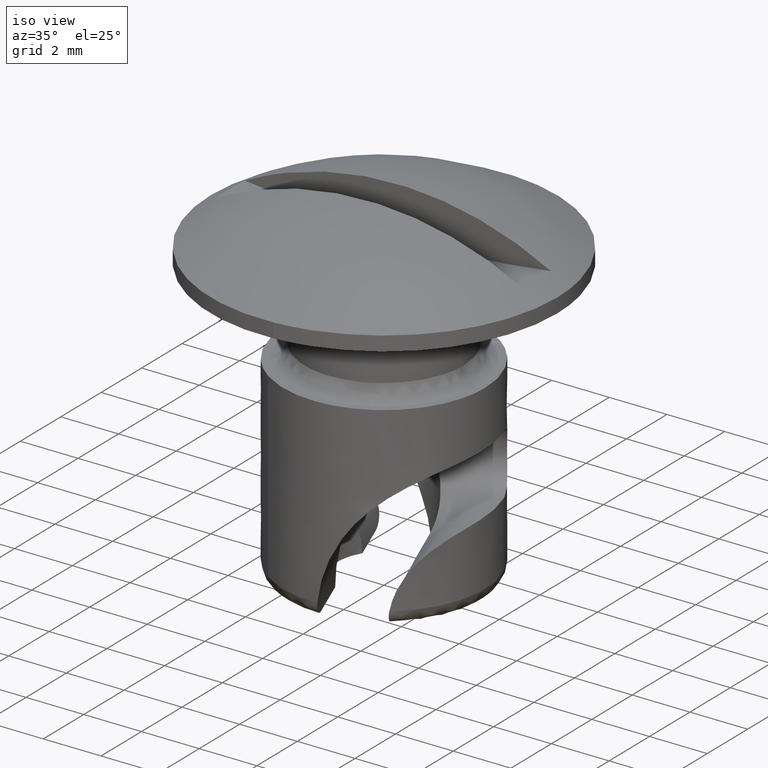
[diagram: clean part render]
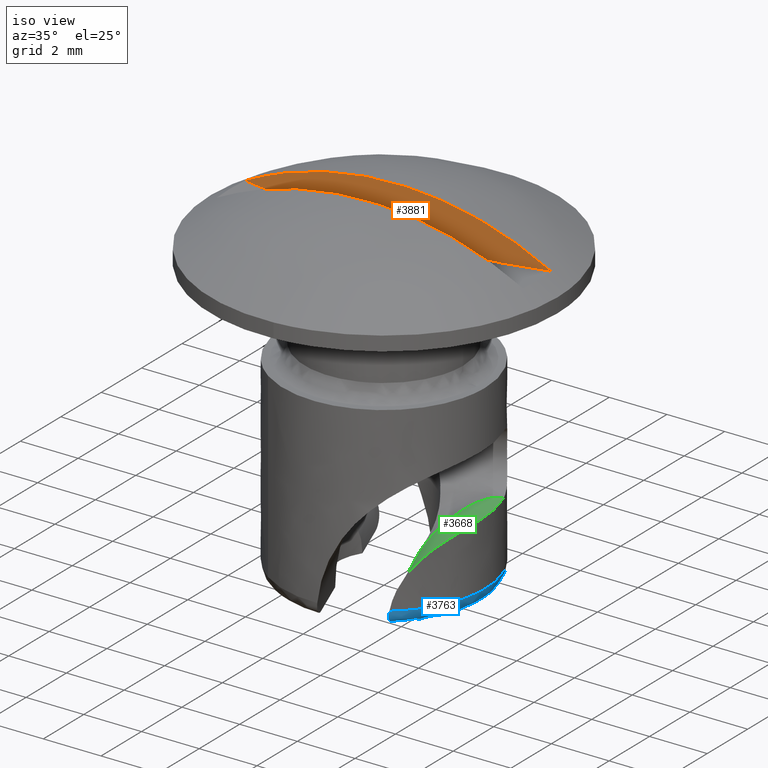
[diagram: same view with three faces highlighted in distinct colors, each labeled with its STEP entity id]
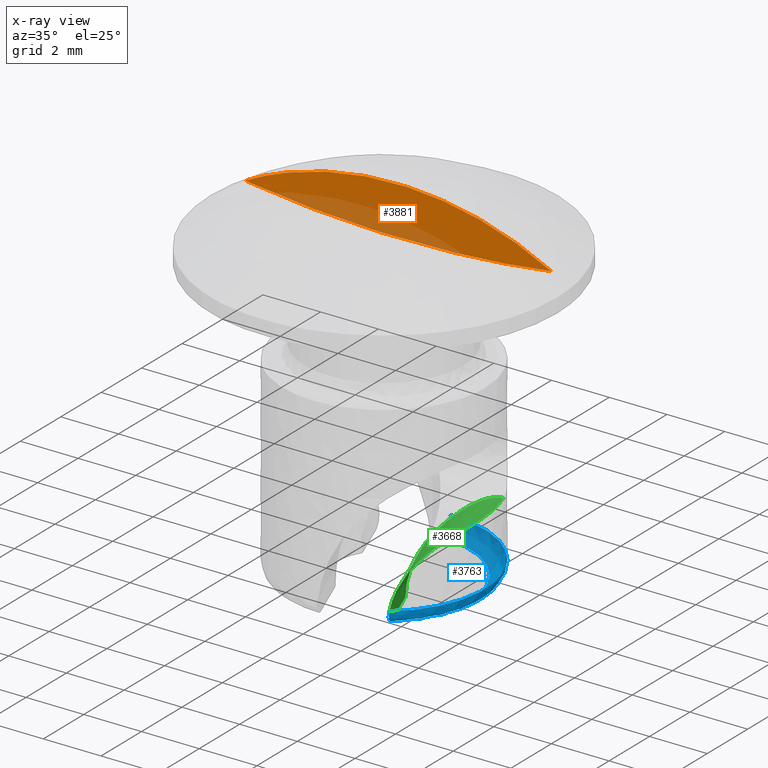
[diagram: x-ray of the same camera — body ghosted, the three highlighted faces saturated]
A machine part, iso view with three faces highlighted in distinct colors.
The next image is the same camera in x-ray (body ghosted, the three faces saturated) — at least one of them is partly hidden behind the body in this view.
Their STEP definitions:

[orange] entity #3881 — the highlighted face is a freeform B-spline surface patch.
#3844=CARTESIAN_POINT('',(-5.833388525220246,0.699996999999910,2.262396328070630));
#3845=CARTESIAN_POINT('',(5.833388240714965,0.699996999999910,2.262396328070630));
#3846=CARTESIAN_POINT('',(-5.833388525220246,0.699996999999910,0.416156254483624));
#3847=CARTESIAN_POINT('',(5.833388240714965,0.699996999999910,0.416156254483624));
#3848=B_SPLINE_SURFACE_WITH_KNOTS('',1,1,((#3844,#3846),(#3845,#3847)),.UNSPECIFIED.,.F.,.F.,.U.,(2,2),(2,2),(0.0,11.666776765935211),(0.0,1.846240073587005),.UNSPECIFIED.);
#3849=CARTESIAN_POINT('',(5.303562853731459,0.699996999999907,0.871922437406934));
#3850=VERTEX_POINT('',#3849);
#3851=CARTESIAN_POINT('',(-5.303562853731459,0.699996999999907,0.871922437406934));
#3852=VERTEX_POINT('',#3851);
#3853=CARTESIAN_POINT('',(5.303562853731459,0.699996999999907,0.871922437406934));
#3854=CARTESIAN_POINT('',(4.336809E-015,0.699996999999910,3.654050891943375));
#3855=CARTESIAN_POINT('',(-5.303562853731469,0.699996999999910,0.871922437406952));
#3863=(BOUNDED_CURVE()B_SPLINE_CURVE(2,(#3853,#3854,#3855),.UNSPECIFIED.,.F.,.U.)CURVE()GEOMETRIC_REPRESENTATION_ITEM()QUASI_UNIFORM_CURVE()RATIONAL_B_SPLINE_CURVE((1.0,0.885551927244557,1.0))REPRESENTATION_ITEM(''));
#3864=EDGE_CURVE('',#3850,#3852,#3863,.T.);
#3865=ORIENTED_EDGE('',*,*,#3864,.T.);
#3866=CARTESIAN_POINT('',(-5.303562853731460,0.699996999999897,0.871922437406934));
#3867=CARTESIAN_POINT('',(-7.806256E-015,0.699996999999897,0.124401416789009));
#3868=CARTESIAN_POINT('',(5.303562853731459,0.699996999999907,0.871922437406934));
#3876=(BOUNDED_CURVE()B_SPLINE_CURVE(2,(#3866,#3867,#3868),.UNSPECIFIED.,.F.,.U.)CURVE()GEOMETRIC_REPRESENTATION_ITEM()QUASI_UNIFORM_CURVE()RATIONAL_B_SPLINE_CURVE((1.0,0.990212567436660,1.0))REPRESENTATION_ITEM(''));
#3877=EDGE_CURVE('',#3852,#3850,#3876,.T.);
#3878=ORIENTED_EDGE('',*,*,#3877,.T.);
#3879=EDGE_LOOP('',(#3865,#3878));
#3880=FACE_OUTER_BOUND('',#3879,.T.);
#3881=ADVANCED_FACE('',(#3880),#3848,.F.);

[blue] entity #3763 — the highlighted face is a freeform B-spline surface patch.
#179=CARTESIAN_POINT('',(2.130075441178700,-2.777188977165105,-9.299999999999999));
#180=VERTEX_POINT('',#179);
#222=CARTESIAN_POINT('',(2.008126187107555,2.866605870476943,-9.300000000000001));
#223=VERTEX_POINT('',#222);
#224=CARTESIAN_POINT('',(2.130075441178701,-2.777188977165105,-9.299999999999999));
#225=CARTESIAN_POINT('',(4.162072481353428,-1.218668103212105,-9.299999999999999));
#226=CARTESIAN_POINT('',(3.291595106735737,1.189706540838268,-9.299999999999999));
#227=CARTESIAN_POINT('',(2.915156806922757,2.231209149354876,-9.299999999999997));
#228=CARTESIAN_POINT('',(2.008126187107555,2.866605870476942,-9.300000000000001));
#236=(BOUNDED_CURVE()B_SPLINE_CURVE(2,(#224,#225,#226,#227,#228),.UNSPECIFIED.,.F.,.U.)B_SPLINE_CURVE_WITH_KNOTS((3,2,3),(0.0,0.500000000000000,0.742816691669973),.UNSPECIFIED.)CURVE()GEOMETRIC_REPRESENTATION_ITEM()RATIONAL_B_SPLINE_CURVE((1.0,0.807043129310147,1.0,0.906293702048198,0.903601217125586))REPRESENTATION_ITEM(''));
#237=EDGE_CURVE('',#180,#223,#236,.T.);
#311=CARTESIAN_POINT('',(-0.137757022448141,3.497287949649875,-9.299999999999999));
#312=VERTEX_POINT('',#311);
#313=CARTESIAN_POINT('',(2.008126187107555,2.866605870476942,-9.300000000000001));
#314=CARTESIAN_POINT('',(1.041516516738349,3.543739146619937,-9.299999999999999));
#315=CARTESIAN_POINT('',(-0.137757022448141,3.497287949649874,-9.299999999999999));
#323=(BOUNDED_CURVE()B_SPLINE_CURVE(2,(#313,#314,#315),.UNSPECIFIED.,.F.,.U.)B_SPLINE_CURVE_WITH_KNOTS((3,3),(0.742816691669973,1.0),.UNSPECIFIED.)CURVE()GEOMETRIC_REPRESENTATION_ITEM()RATIONAL_B_SPLINE_CURVE((0.903601217125586,0.900749427261949,1.0))REPRESENTATION_ITEM(''));
#324=EDGE_CURVE('',#223,#312,#323,.T.);
#3483=CARTESIAN_POINT('',(0.080239420365373,2.998926747257960,-9.799999999999999));
#3484=VERTEX_POINT('',#3483);
#3485=CARTESIAN_POINT('',(-0.137757022448141,3.497287949649875,-9.299999999999999));
#3486=CARTESIAN_POINT('',(-0.134132436457687,3.497430720900300,-9.333926120683451));
#3487=CARTESIAN_POINT('',(-0.129640260713038,3.494181782439849,-9.367378948564527));
#3488=CARTESIAN_POINT('',(-0.118905553909452,3.481038192921639,-9.433350344673281));
#3489=CARTESIAN_POINT('',(-0.112624845358912,3.471025975895301,-9.465909220416926));
#3490=CARTESIAN_POINT('',(-0.098744670387415,3.445249411175664,-9.527170293401925));
#3491=CARTESIAN_POINT('',(-0.091089024284029,3.429432838909117,-9.556267335355768));
#3492=CARTESIAN_POINT('',(-0.074147083489533,3.391881020304141,-9.611317578329592));
#3493=CARTESIAN_POINT('',(-0.065125447872394,3.370735824254828,-9.636399413267819));
#3494=CARTESIAN_POINT('',(-0.045895685391280,3.324122915022451,-9.681856314688393));
#3495=CARTESIAN_POINT('',(-0.035567049289708,3.298345127530344,-9.702415737830911));
#3496=CARTESIAN_POINT('',(-0.014137898155494,3.243995652549709,-9.737620952804281));
#3497=CARTESIAN_POINT('',(-0.003060017889228,3.215495944995386,-9.752321592371372));
#3498=CARTESIAN_POINT('',(0.019936099126279,3.155987085026253,-9.776109208942987));
#3499=CARTESIAN_POINT('',(0.031912715942304,3.124823539626253,-9.785163879862525));
#3500=CARTESIAN_POINT('',(0.055891102723282,3.062374614793466,-9.797039366818627));
#3501=CARTESIAN_POINT('',(0.067998811922299,3.030814627400063,-9.799999999889369));
#3502=CARTESIAN_POINT('',(0.080239420365373,2.998926747257960,-9.799999999999999));
#3503=B_SPLINE_CURVE_WITH_KNOTS('',3,(#3485,#3486,#3487,#3488,#3489,#3490,#3491,#3492,#3493,#3494,#3495,#3496,#3497,#3498,#3499,#3500,#3501,#3502),.UNSPECIFIED.,.F.,.U.,(4,2,2,2,2,2,2,2,4),(0.0,0.125000000000000,0.250000000000000,0.375000000000000,0.500000000000000,0.625000000000000,0.750000000000000,0.875000000000000,1.0),.UNSPECIFIED.);
#3504=EDGE_CURVE('',#312,#3484,#3503,.T.);
#3638=CARTESIAN_POINT('',(1.906978861115200,-2.315908379720530,-9.799999999999999));
#3639=VERTEX_POINT('',#3638);
#3645=CARTESIAN_POINT('',(2.130075441178703,-2.777188977165104,-9.300000000000004));
#3646=CARTESIAN_POINT('',(2.125207190414889,-2.780922875534557,-9.333183272121120));
#3647=CARTESIAN_POINT('',(2.119668458612029,-2.781029743049898,-9.366049092864868));
#3648=CARTESIAN_POINT('',(2.107187352705782,-2.774075521922642,-9.431139141467490));
#3649=CARTESIAN_POINT('',(2.100154557965392,-2.766843942316030,-9.463678030301731));
#3650=CARTESIAN_POINT('',(2.085091666893553,-2.745728706374117,-9.525114703559190));
#3651=CARTESIAN_POINT('',(2.077018872512545,-2.731884596106581,-9.554322145193783));
#3652=CARTESIAN_POINT('',(2.059506595577937,-2.697701537372386,-9.609672805767263));
#3653=CARTESIAN_POINT('',(2.050310647059680,-2.677834332726543,-9.635014324561455));
#3654=CARTESIAN_POINT('',(2.030972175045378,-2.633439045435500,-9.680843940488918));
#3655=CARTESIAN_POINT('',(2.020691198678081,-2.608566691567891,-9.701570195246278));
#3656=CARTESIAN_POINT('',(1.999570599173187,-2.555998058538903,-9.736954771809605));
#3657=CARTESIAN_POINT('',(1.988690008278448,-2.528225781555033,-9.751784267086974));
#3658=CARTESIAN_POINT('',(1.966061360946408,-2.469875134090497,-9.775859528742853));
#3659=CARTESIAN_POINT('',(1.954408848319010,-2.439540972403132,-9.784939635178855));
#3660=CARTESIAN_POINT('',(1.930960765938615,-2.378430752100600,-9.796956075712494));
#3661=CARTESIAN_POINT('',(1.919038186803075,-2.347323989491613,-9.799999999999999));
#3662=CARTESIAN_POINT('',(1.906978861115176,-2.315908379720550,-9.799999999999999));
#3663=B_SPLINE_CURVE_WITH_KNOTS('',3,(#3645,#3646,#3647,#3648,#3649,#3650,#3651,#3652,#3653,#3654,#3655,#3656,#3657,#3658,#3659,#3660,#3661,#3662),.UNSPECIFIED.,.F.,.U.,(4,2,2,2,2,2,2,2,4),(0.0,0.125000000000000,0.250000000000000,0.375000000000000,0.500000000000000,0.625000000000000,0.750000000000000,0.875000000000000,1.0),.UNSPECIFIED.);
#3664=EDGE_CURVE('',#180,#3639,#3663,.T.);
#3719=CARTESIAN_POINT('',(1.498129080787281,-2.558837926367392,-9.798783147493648));
#3720=CARTESIAN_POINT('',(3.624487164459457,-1.313913873737485,-9.798783147493648));
#3721=CARTESIAN_POINT('',(2.789841149681218,1.004404617503373,-9.798783147493650));
#3722=CARTESIAN_POINT('',(1.957178014833242,3.317215447859436,-9.798783147493650));
#3723=CARTESIAN_POINT('',(-0.469893260555351,2.927668457971525,-9.798783147493650));
#3724=CARTESIAN_POINT('',(1.787903700042125,-3.053779447333201,-9.838869708061868));
#3725=CARTESIAN_POINT('',(4.325551179266096,-1.568056789310457,-9.838869708061868));
#3726=CARTESIAN_POINT('',(3.329464315200131,1.198680911413840,-9.838869708061869));
#3727=CARTESIAN_POINT('',(2.335743868293760,3.958845635616429,-9.838869708061866));
#3728=CARTESIAN_POINT('',(-0.560782051390577,3.493950778762798,-9.838869708061868));
#3729=CARTESIAN_POINT('',(1.767758748775863,-3.019371420691168,-9.265324905871569));
#3730=CARTESIAN_POINT('',(4.276813645077881,-1.550388931918224,-9.265324905871566));
#3731=CARTESIAN_POINT('',(3.291950048424529,1.185174944317480,-9.265324905871566));
#3732=CARTESIAN_POINT('',(2.309426205661180,3.914239904111836,-9.265324905871568));
#3733=CARTESIAN_POINT('',(-0.554463519192232,3.454583184096912,-9.265324905871568));
#3741=(BOUNDED_SURFACE()B_SPLINE_SURFACE(2,2,((#3719,#3724,#3729),(#3720,#3725,#3730),(#3721,#3726,#3731),(#3722,#3727,#3732),(#3723,#3728,#3733)),.UNSPECIFIED.,.F.,.F.,.U.)B_SPLINE_SURFACE_WITH_KNOTS((3,2,3),(3,3),(0.0,5.055766372501000,10.102402140195510),(0.0,0.911185038638671),.UNSPECIFIED.)GEOMETRIC_REPRESENTATION_ITEM()RATIONAL_B_SPLINE_SURFACE(((0.891707163205735,0.586787729512996,0.896673745563242),(0.694267683793992,0.456862717557569,0.698134578411416),(0.913811135304677,0.601333244157656,0.918900831171178),(0.694664174522776,0.457123628206397,0.698533277492829),(0.890995380353980,0.586319340942486,0.895957998261834)))REPRESENTATION_ITEM('')SURFACE());
#3742=ORIENTED_EDGE('',*,*,#3504,.F.);
#3743=ORIENTED_EDGE('',*,*,#324,.F.);
#3744=ORIENTED_EDGE('',*,*,#237,.F.);
#3745=ORIENTED_EDGE('',*,*,#3664,.T.);
#3746=CARTESIAN_POINT('',(0.080239420365372,2.998926747257997,-9.799999999999999));
#3747=CARTESIAN_POINT('',(2.160638553340537,2.943263493491902,-9.799999999999997));
#3748=CARTESIAN_POINT('',(2.837098382380115,0.975127052591680,-9.799999999999999));
#3749=CARTESIAN_POINT('',(3.513558211419692,-0.993009388308544,-9.799999999999997));
#3750=CARTESIAN_POINT('',(1.906978861115200,-2.315908379720531,-9.799999999999999));
#3758=(BOUNDED_CURVE()B_SPLINE_CURVE(2,(#3746,#3747,#3748,#3749,#3750),.UNSPECIFIED.,.F.,.U.)B_SPLINE_CURVE_WITH_KNOTS((3,2,3),(0.0,0.500000000000000,1.0),.UNSPECIFIED.)CURVE()GEOMETRIC_REPRESENTATION_ITEM()RATIONAL_B_SPLINE_CURVE((1.0,0.821650835875683,1.0,0.821650835875683,1.0))REPRESENTATION_ITEM(''));
#3759=EDGE_CURVE('',#3484,#3639,#3758,.T.);
#3760=ORIENTED_EDGE('',*,*,#3759,.F.);
#3761=EDGE_LOOP('',(#3742,#3743,#3744,#3745,#3760));
#3762=FACE_OUTER_BOUND('',#3761,.T.);
#3763=ADVANCED_FACE('',(#3762),#3741,.T.);

[green] entity #3668 — the highlighted face is a freeform B-spline surface patch.
#158=CARTESIAN_POINT('',(3.267531389806065,1.254288091569578,-7.0));
#159=VERTEX_POINT('',#158);
#179=CARTESIAN_POINT('',(2.130075441178700,-2.777188977165105,-9.299999999999999));
#180=VERTEX_POINT('',#179);
#181=CARTESIAN_POINT('',(3.267531389806065,1.254288091569578,-7.0));
#182=CARTESIAN_POINT('',(3.351236201231298,1.036229656143438,-7.000000000000044));
#183=CARTESIAN_POINT('',(3.411928696002228,0.813524103630151,-7.001800996670408));
#184=CARTESIAN_POINT('',(3.469827848615739,0.472825998035594,-7.009600199138060));
#185=CARTESIAN_POINT('',(3.483562531513643,0.358145937308118,-7.013102425939854));
#186=CARTESIAN_POINT('',(3.495619258811995,0.184431839080720,-7.020534950377436));
#187=CARTESIAN_POINT('',(3.498212180357704,0.126067960738645,-7.023390375839234));
#188=CARTESIAN_POINT('',(3.500469369138219,0.009786994067357,-7.029966316466434));
#189=CARTESIAN_POINT('',(3.500144511385644,-0.048109455840928,-7.033682853950105));
#190=CARTESIAN_POINT('',(3.491431374993663,-0.336340421150401,-7.054835481180629));
#191=CARTESIAN_POINT('',(3.461918738339058,-0.562977309875914,-7.079685337474288));
#192=CARTESIAN_POINT('',(3.398109027051480,-0.840294049969936,-7.130150688370769));
#193=CARTESIAN_POINT('',(3.383992784310708,-0.895454771716475,-7.141234085952900));
#194=CARTESIAN_POINT('',(3.353052753250736,-1.005128671551261,-7.165714803996293));
#195=CARTESIAN_POINT('',(3.336194478454463,-1.059709490379516,-7.179141610569221));
#196=CARTESIAN_POINT('',(3.282408131559174,-1.220044288604333,-7.222764943899247));
#197=CARTESIAN_POINT('',(3.242068892079109,-1.323176334171408,-7.256451718762171));
#198=CARTESIAN_POINT('',(3.153749195252495,-1.521733329378895,-7.334986374075226));
#199=CARTESIAN_POINT('',(3.105763618038679,-1.617158614404538,-7.379827729397077));
#200=CARTESIAN_POINT('',(3.029071382458817,-1.754271634835354,-7.457209940913495));
#201=CARTESIAN_POINT('',(3.002696795596468,-1.798990073473767,-7.484733671681067));
#202=CARTESIAN_POINT('',(2.949511085799146,-1.884923787714078,-7.542440264602115));
#203=CARTESIAN_POINT('',(2.922593267599006,-1.926337623400648,-7.572727371432208));
#204=CARTESIAN_POINT('',(2.841274894414518,-2.046086303884898,-7.668031174000636));
#205=CARTESIAN_POINT('',(2.786308989744124,-2.119934950668806,-7.737482804827605));
#206=CARTESIAN_POINT('',(2.704329386886680,-2.222276549525314,-7.851197747841928));
#207=CARTESIAN_POINT('',(2.677080857038339,-2.254983552241480,-7.890693929119331));
#208=CARTESIAN_POINT('',(2.623012407187728,-2.317653694523834,-7.973006711592077));
#209=CARTESIAN_POINT('',(2.596184807477814,-2.347614942412520,-8.015860002349903));
#210=CARTESIAN_POINT('',(2.518069499382975,-2.432120861706055,-8.147317138427383));
#211=CARTESIAN_POINT('',(2.468685109934238,-2.481862689659974,-8.239491498513957));
#212=CARTESIAN_POINT('',(2.376845319873084,-2.569952316237536,-8.432795620225614));
#213=CARTESIAN_POINT('',(2.334357523734929,-2.608320339728395,-8.533992450119699));
#214=CARTESIAN_POINT('',(2.257984747262054,-2.674708381186748,-8.745278260521699));
#215=CARTESIAN_POINT('',(2.224880716377864,-2.702069470426243,-8.853192757073909));
#216=CARTESIAN_POINT('',(2.169320343134340,-2.746875110736407,-9.073347943216476));
#217=CARTESIAN_POINT('',(2.146860492500005,-2.764315015078833,-9.185588694464377));
#218=CARTESIAN_POINT('',(2.130075441178700,-2.777188977165105,-9.299999999999999));
#219=B_SPLINE_CURVE_WITH_KNOTS('',3,(#181,#182,#183,#184,#185,#186,#187,#188,#189,#190,#191,#192,#193,#194,#195,#196,#197,#198,#199,#200,#201,#202,#203,#204,#205,#206,#207,#208,#209,#210,#211,#212,#213,#214,#215,#216,#217,#218),.UNSPECIFIED.,.F.,.U.,(4,2,2,2,2,2,2,2,2,2,2,2,2,2,2,2,2,2,4),(0.0,0.125000000000000,0.187500000000000,0.218750000000000,0.250000000000000,0.374999999999999,0.406249999999999,0.437499999999999,0.499999999999999,0.562499999999999,0.593749999999999,0.624999999999999,0.687499999999998,0.718749999999999,0.749999999999999,0.812499999999999,0.874999999999999,0.937500000000000,1.0),.UNSPECIFIED.);
#220=EDGE_CURVE('',#159,#180,#219,.T.);
#1281=CARTESIAN_POINT('',(1.348526415986928,-0.861090300366407,-9.800006999999789));
#1282=VERTEX_POINT('',#1281);
#1298=CARTESIAN_POINT('',(1.526739714262565,-0.478608237385708,-8.520980805307620));
#1299=VERTEX_POINT('',#1298);
#1300=CARTESIAN_POINT('',(1.348526415986928,-0.861090300366407,-9.800006999999789));
#1301=CARTESIAN_POINT('',(1.348216878263476,-0.861575057628850,-9.684480202719346));
#1302=CARTESIAN_POINT('',(1.352707110030773,-0.854672807549093,-9.570560551882979));
#1303=CARTESIAN_POINT('',(1.370351731888041,-0.826086112874334,-9.345851547787540));
#1304=CARTESIAN_POINT('',(1.383519998961992,-0.804411827625889,-9.235061851465098));
#1305=CARTESIAN_POINT('',(1.408719474774443,-0.758822073012819,-9.071444511098264));
#1306=CARTESIAN_POINT('',(1.418069932805433,-0.741329285476151,-9.017089868608604));
#1307=CARTESIAN_POINT('',(1.438064287306668,-0.701756759566075,-8.910550163466356));
#1308=CARTESIAN_POINT('',(1.448657629700481,-0.679781926301323,-8.858581550459556));
#1309=CARTESIAN_POINT('',(1.481458788396997,-0.606736702840804,-8.706707380556868));
#1310=CARTESIAN_POINT('',(1.504778748275995,-0.548662777793634,-8.610790856729183));
#1311=CARTESIAN_POINT('',(1.526739714262565,-0.478608237385708,-8.520980805307620));
#1312=B_SPLINE_CURVE_WITH_KNOTS('',3,(#1300,#1301,#1302,#1303,#1304,#1305,#1306,#1307,#1308,#1309,#1310,#1311),.UNSPECIFIED.,.F.,.U.,(4,2,2,2,2,4),(0.0,0.249999999999999,0.499999999999999,0.624999999999998,0.749999999999998,1.0),.UNSPECIFIED.);
#1313=EDGE_CURVE('',#1282,#1299,#1312,.T.);
#3226=CARTESIAN_POINT('',(3.267531389806065,1.254288091569578,-7.0));
#3227=CARTESIAN_POINT('',(3.202265972063375,1.276711525035881,-7.003420044364808));
#3228=CARTESIAN_POINT('',(3.130704219687183,1.275181439910476,-7.012578777117788));
#3229=CARTESIAN_POINT('',(3.064065319361154,1.260788751047254,-7.023251242721845));
#3230=CARTESIAN_POINT('',(2.966368535187341,1.239688171495798,-7.038897742943500));
#3231=CARTESIAN_POINT('',(2.877305648344979,1.193055155503925,-7.060326967196116));
#3232=CARTESIAN_POINT('',(2.799123687807710,1.134830254125221,-7.085726201660476));
#3233=CARTESIAN_POINT('',(2.763402807496198,1.108227637370594,-7.097330963271346));
#3234=CARTESIAN_POINT('',(2.729221533113726,1.080314401305378,-7.109820027332903));
#3235=CARTESIAN_POINT('',(2.695384281652506,1.051917978661729,-7.123176895388684));
#3236=CARTESIAN_POINT('',(2.660784704728483,1.022881807956434,-7.136834682703048));
#3237=CARTESIAN_POINT('',(2.633773646453845,0.985782193526259,-7.150301039631580));
#3238=CARTESIAN_POINT('',(2.602401570774032,0.954464819407923,-7.165416476001891));
#3239=CARTESIAN_POINT('',(2.581500280656621,0.933599973586325,-7.175486964293822));
#3240=CARTESIAN_POINT('',(2.564002305293624,0.909196866615426,-7.185286012031100));
#3241=CARTESIAN_POINT('',(2.544158314267516,0.887669831020986,-7.195982921086537));
#3242=CARTESIAN_POINT('',(2.528744773152667,0.870949008693504,-7.204291594846308));
#3243=CARTESIAN_POINT('',(2.515715250331078,0.851919465636551,-7.212289286282187));
#3244=CARTESIAN_POINT('',(2.500872026123141,0.834889331589898,-7.220966651913525));
#3245=CARTESIAN_POINT('',(2.489734614152463,0.822111001482076,-7.227477595526755));
#3246=CARTESIAN_POINT('',(2.479938469615569,0.808066079163613,-7.233788377897459));
#3247=CARTESIAN_POINT('',(2.469121123025193,0.795124088021453,-7.240498485978906));
#3248=CARTESIAN_POINT('',(2.444422879227778,0.765574840451123,-7.255819053173271));
#3249=CARTESIAN_POINT('',(2.422641390461839,0.734073405614878,-7.271043404572878));
#3250=CARTESIAN_POINT('',(2.399399526339807,0.703575103657170,-7.287372650652721));
#3251=CARTESIAN_POINT('',(2.382633822558448,0.681574910653173,-7.299151882357635));
#3252=CARTESIAN_POINT('',(2.373247550084899,0.655058804049956,-7.308735421080853));
#3253=CARTESIAN_POINT('',(2.358837646674420,0.632584514484881,-7.320248429281167));
#3254=CARTESIAN_POINT('',(2.353041360417547,0.623544383400844,-7.324879459018550));
#3255=CARTESIAN_POINT('',(2.348232918740299,0.613714328956107,-7.329220737455975));
#3256=CARTESIAN_POINT('',(2.342274755648430,0.604846138964634,-7.334016303862240));
#3257=CARTESIAN_POINT('',(2.335244229249994,0.594381832620537,-7.339674986864845));
#3258=CARTESIAN_POINT('',(2.329306132675650,0.583021303753614,-7.345028665104186));
#3259=CARTESIAN_POINT('',(2.322377563837621,0.572555063477277,-7.350800364534953));
#3260=CARTESIAN_POINT('',(2.301592124275670,0.541156745904012,-7.368115240448357));
#3261=CARTESIAN_POINT('',(2.284055588674102,0.507326605190345,-7.384909985982517));
#3262=CARTESIAN_POINT('',(2.264125430642915,0.475954707552480,-7.403252516640204));
#3263=CARTESIAN_POINT('',(2.236954957032688,0.433185888783533,-7.428258602613009));
#3264=CARTESIAN_POINT('',(2.212111492128583,0.389097726608739,-7.453569196442551));
#3265=CARTESIAN_POINT('',(2.185965759423134,0.347008545045572,-7.480746516441158));
#3266=CARTESIAN_POINT('',(2.165921677649275,0.314741750056457,-7.501581443141563));
#3267=CARTESIAN_POINT('',(2.147039807189050,0.281950072038970,-7.522725712643589));
#3268=CARTESIAN_POINT('',(2.127354259872653,0.250351844842671,-7.544898840166185));
#3269=CARTESIAN_POINT('',(2.086138009775233,0.184193641881611,-7.591323415247827));
#3270=CARTESIAN_POINT('',(2.046286713853633,0.118978416338279,-7.640353617109756));
#3271=CARTESIAN_POINT('',(2.005892329156856,0.057245025435030,-7.693209994488186));
#3272=CARTESIAN_POINT('',(1.942347818633313,-0.039867930668955,-7.776358497770823));
#3273=CARTESIAN_POINT('',(1.880341629462146,-0.130734596704930,-7.868265493406327));
#3274=CARTESIAN_POINT('',(1.816825404997875,-0.208525231289190,-7.969953129463151));
#3275=CARTESIAN_POINT('',(1.731068891274252,-0.313554358548586,-8.107246824587222));
#3276=CARTESIAN_POINT('',(1.647462642982773,-0.398118671511560,-8.262047722037847));
#3277=CARTESIAN_POINT('',(1.567782209906352,-0.450732745962401,-8.430042512807958));
#3278=CARTESIAN_POINT('',(1.553541924254217,-0.460135800395904,-8.460066117302459));
#3279=CARTESIAN_POINT('',(1.540084396059760,-0.469954249309885,-8.490341764791452));
#3280=CARTESIAN_POINT('',(1.526739714262565,-0.478608237385708,-8.520980805307620));
#3281=B_SPLINE_CURVE_WITH_KNOTS('',3,(#3226,#3227,#3228,#3229,#3230,#3231,#3232,#3233,#3234,#3235,#3236,#3237,#3238,#3239,#3240,#3241,#3242,#3243,#3244,#3245,#3246,#3247,#3248,#3249,#3250,#3251,#3252,#3253,#3254,#3255,#3256,#3257,#3258,#3259,#3260,#3261,#3262,#3263,#3264,#3265,#3266,#3267,#3268,#3269,#3270,#3271,#3272,#3273,#3274,#3275,#3276,#3277,#3278,#3279,#3280),.UNSPECIFIED.,.F.,.U.,(4,3,3,3,3,3,3,3,3,3,3,3,3,3,3,3,3,3,4),(0.0,0.207284192414726,0.511175746895779,0.650022020009159,0.791996385530723,0.886585198629594,0.960055729723159,1.015183346272667,1.141051118201280,1.231846837886016,1.268368802482176,1.311464070647372,1.440748214717240,1.616999271993070,1.752118476513569,2.035021808433753,2.480057767943794,3.080923652072287,3.188308884534638),.UNSPECIFIED.);
#3282=EDGE_CURVE('',#159,#1299,#3281,.T.);
#3621=CARTESIAN_POINT('',(0.828414322992632,0.502012662465389,-9.917250435243075));
#3622=CARTESIAN_POINT('',(2.124428237461148,-2.874218185639653,-9.917250435243075));
#3623=CARTESIAN_POINT('',(0.705628274154824,0.454879502750994,-7.053640134081148));
#3624=CARTESIAN_POINT('',(2.001642188623341,-2.921351345354050,-7.053640134081148));
#3625=CARTESIAN_POINT('',(3.381186671688216,1.481930397130026,-6.989486979845774));
#3626=CARTESIAN_POINT('',(4.677200586156732,-1.894300450975017,-6.989486979845773));
#3634=(BOUNDED_SURFACE()B_SPLINE_SURFACE(1,2,((#3621,#3623,#3625),(#3622,#3624,#3626)),.UNSPECIFIED.,.F.,.F.,.U.)B_SPLINE_SURFACE_WITH_KNOTS((2,2),(3,3),(0.0,3.616432884237188),(0.0,4.716512445631454),.UNSPECIFIED.)GEOMETRIC_REPRESENTATION_ITEM()RATIONAL_B_SPLINE_SURFACE(((1.0,0.697070244438356,0.995214354517523),(1.0,0.697070244438356,0.995214354517523)))REPRESENTATION_ITEM('')SURFACE());
#3635=ORIENTED_EDGE('',*,*,#220,.F.);
#3636=ORIENTED_EDGE('',*,*,#3282,.T.);
#3637=ORIENTED_EDGE('',*,*,#1313,.F.);
#3638=CARTESIAN_POINT('',(1.906978861115200,-2.315908379720530,-9.799999999999999));
#3639=VERTEX_POINT('',#3638);
#3640=CARTESIAN_POINT('',(1.348526415986928,-0.861090300366407,-9.800006999999789));
#3641=CARTESIAN_POINT('',(1.906978861115200,-2.315908379720530,-9.799999999999999));
#3642=QUASI_UNIFORM_CURVE('',1,(#3640,#3641),.UNSPECIFIED.,.F.,.U.);
#3643=EDGE_CURVE('',#1282,#3639,#3642,.T.);
#3644=ORIENTED_EDGE('',*,*,#3643,.T.);
#3645=CARTESIAN_POINT('',(2.130075441178703,-2.777188977165104,-9.300000000000004));
#3646=CARTESIAN_POINT('',(2.125207190414889,-2.780922875534557,-9.333183272121120));
#3647=CARTESIAN_POINT('',(2.119668458612029,-2.781029743049898,-9.366049092864868));
#3648=CARTESIAN_POINT('',(2.107187352705782,-2.774075521922642,-9.431139141467490));
#3649=CARTESIAN_POINT('',(2.100154557965392,-2.766843942316030,-9.463678030301731));
#3650=CARTESIAN_POINT('',(2.085091666893553,-2.745728706374117,-9.525114703559190));
#3651=CARTESIAN_POINT('',(2.077018872512545,-2.731884596106581,-9.554322145193783));
#3652=CARTESIAN_POINT('',(2.059506595577937,-2.697701537372386,-9.609672805767263));
#3653=CARTESIAN_POINT('',(2.050310647059680,-2.677834332726543,-9.635014324561455));
#3654=CARTESIAN_POINT('',(2.030972175045378,-2.633439045435500,-9.680843940488918));
#3655=CARTESIAN_POINT('',(2.020691198678081,-2.608566691567891,-9.701570195246278));
#3656=CARTESIAN_POINT('',(1.999570599173187,-2.555998058538903,-9.736954771809605));
#3657=CARTESIAN_POINT('',(1.988690008278448,-2.528225781555033,-9.751784267086974));
#3658=CARTESIAN_POINT('',(1.966061360946408,-2.469875134090497,-9.775859528742853));
#3659=CARTESIAN_POINT('',(1.954408848319010,-2.439540972403132,-9.784939635178855));
#3660=CARTESIAN_POINT('',(1.930960765938615,-2.378430752100600,-9.796956075712494));
#3661=CARTESIAN_POINT('',(1.919038186803075,-2.347323989491613,-9.799999999999999));
#3662=CARTESIAN_POINT('',(1.906978861115176,-2.315908379720550,-9.799999999999999));
#3663=B_SPLINE_CURVE_WITH_KNOTS('',3,(#3645,#3646,#3647,#3648,#3649,#3650,#3651,#3652,#3653,#3654,#3655,#3656,#3657,#3658,#3659,#3660,#3661,#3662),.UNSPECIFIED.,.F.,.U.,(4,2,2,2,2,2,2,2,4),(0.0,0.125000000000000,0.250000000000000,0.375000000000000,0.500000000000000,0.625000000000000,0.750000000000000,0.875000000000000,1.0),.UNSPECIFIED.);
#3664=EDGE_CURVE('',#180,#3639,#3663,.T.);
#3665=ORIENTED_EDGE('',*,*,#3664,.F.);
#3666=EDGE_LOOP('',(#3635,#3636,#3637,#3644,#3665));
#3667=FACE_OUTER_BOUND('',#3666,.T.);
#3668=ADVANCED_FACE('',(#3667),#3634,.T.);